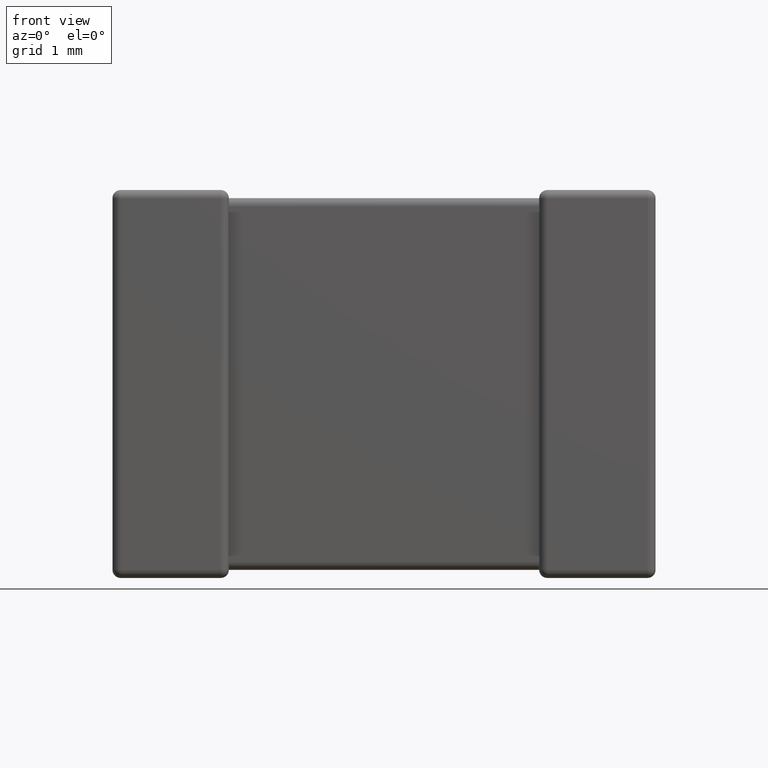
[diagram: clean part render]
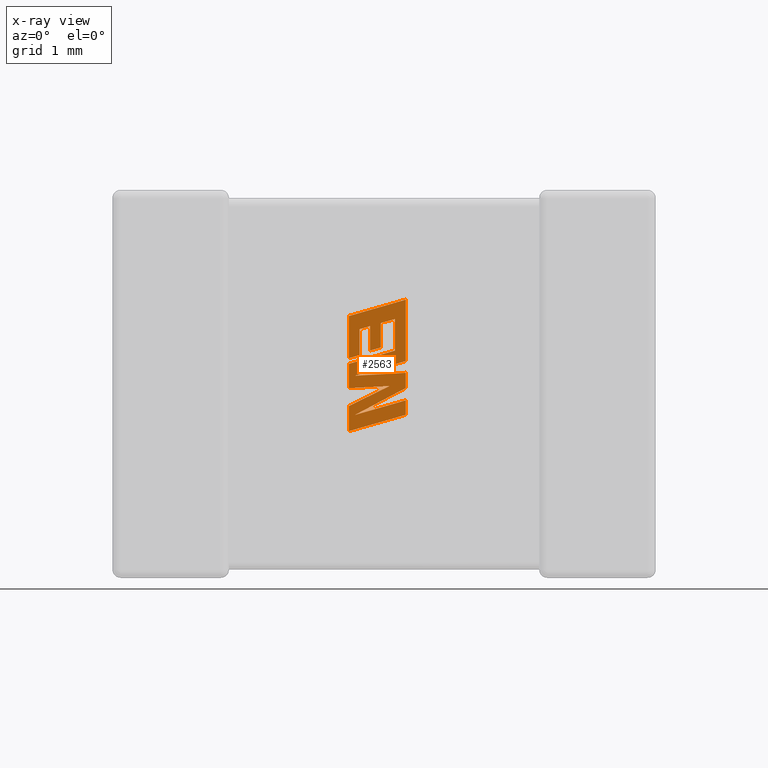
[diagram: x-ray — body ghosted, one internal face saturated and labeled with its STEP entity id]
A machine part, front view, then the same camera in x-ray: the body is ghosted and one INTERNAL B-rep face — a face not visible from any outside direction — is saturated and labeled: STEP entity #2563.
In plain terms, the highlighted planar face has unit normal (0, -1, 0).
Its self-contained STEP definition (entity closure, byte-faithful):
#22 = ORIENTED_EDGE ( 'NONE', *, *, #4190, .F. ) ;
#50 = VECTOR ( 'NONE', #3666, 1000.000000000000000 ) ;
#51 = ORIENTED_EDGE ( 'NONE', *, *, #3562, .F. ) ;
#85 = VERTEX_POINT ( 'NONE', #4511 ) ;
#94 = CARTESIAN_POINT ( 'NONE',  ( 2.646000000000011010, 2.627200000000000202, -1.650160399609248874 ) ) ;
#109 = CARTESIAN_POINT ( 'NONE',  ( 2.131461455074790567, 2.627200000000000202, -1.518180063271352687 ) ) ;
#164 = FACE_OUTER_BOUND ( 'NONE', #1676, .T. ) ;
#171 = CARTESIAN_POINT ( 'NONE',  ( 2.646000000000011010, 2.627200000000000202, -1.898139623118868524 ) ) ;
#192 = LINE ( 'NONE', #1969, #2816 ) ;
#195 = DIRECTION ( 'NONE',  ( -0.9617234872620624708, 0.000000000000000000, -0.2740217765953968931 ) ) ;
#207 = LINE ( 'NONE', #4126, #1148 ) ;
#250 = ORIENTED_EDGE ( 'NONE', *, *, #722, .F. ) ;
#261 = CARTESIAN_POINT ( 'NONE',  ( 2.646000000000011010, 2.627200000000000202, -1.787331774155181074 ) ) ;
#287 = CARTESIAN_POINT ( 'NONE',  ( 2.229401225116403484, 2.627200000000000202, -1.255934090619534649 ) ) ;
#310 = DIRECTION ( 'NONE',  ( 0.9610029908221285888, 0.000000000000000000, 0.2765379750249931656 ) ) ;
#331 = CARTESIAN_POINT ( 'NONE',  ( 2.185713901613333565, 2.627200000000000202, -2.030318652395434409 ) ) ;
#348 = ORIENTED_EDGE ( 'NONE', *, *, #3395, .F. ) ;
#363 = EDGE_CURVE ( 'NONE', #1961, #2316, #1980, .T. ) ;
#388 = CARTESIAN_POINT ( 'NONE',  ( 2.131461455074790567, 2.627200000000000202, -1.788625948747415650 ) ) ;
#411 = CARTESIAN_POINT ( 'NONE',  ( 2.325105313117774131, 2.627200000000000202, -1.228085846872917664 ) ) ;
#423 = DIRECTION ( 'NONE',  ( 0.000000000000000000, 0.000000000000000000, -1.000000000000000000 ) ) ;
#499 = DIRECTION ( 'NONE',  ( 0.000000000000000000, 0.000000000000000000, -1.000000000000000000 ) ) ;
#529 = LINE ( 'NONE', #1301, #3782 ) ;
#532 = CARTESIAN_POINT ( 'NONE',  ( 2.229401225116403484, 2.627200000000000202, -1.490363109686198895 ) ) ;
#592 = ORIENTED_EDGE ( 'NONE', *, *, #1015, .F. ) ;
#599 = CARTESIAN_POINT ( 'NONE',  ( 2.185713901613333565, 2.627200000000000202, -2.030318652395434409 ) ) ;
#602 = EDGE_CURVE ( 'NONE', #2316, #1583, #3575, .T. ) ;
#611 = LINE ( 'NONE', #1244, #2222 ) ;
#637 = DIRECTION ( 'NONE',  ( -0.9615454294334447871, 0.000000000000000000, -0.2746459304917005517 ) ) ;
#722 = EDGE_CURVE ( 'NONE', #1392, #1485, #2058, .T. ) ;
#725 = CARTESIAN_POINT ( 'NONE',  ( 2.420225839607044183, 2.627200000000000202, -1.421762559585259877 ) ) ;
#738 = DIRECTION ( 'NONE',  ( 0.9984327301130250243, 0.000000000000000000, 0.05596501978067342647 ) ) ;
#761 = VERTEX_POINT ( 'NONE', #109 ) ;
#780 = ORIENTED_EDGE ( 'NONE', *, *, #4389, .F. ) ;
#838 = VERTEX_POINT ( 'NONE', #725 ) ;
#873 = EDGE_CURVE ( 'NONE', #4436, #998, #192, .T. ) ;
#913 = ORIENTED_EDGE ( 'NONE', *, *, #363, .F. ) ;
#915 = CARTESIAN_POINT ( 'NONE',  ( 2.548108729707783127, 2.627200000000000202, -1.449742222008734815 ) ) ;
#974 = CARTESIAN_POINT ( 'NONE',  ( 2.131461455074790567, 2.627200000000000202, -1.951152340343301539 ) ) ;
#988 = CARTESIAN_POINT ( 'NONE',  ( 2.646000000000011010, 2.627200000000000202, -1.650160399609248874 ) ) ;
#998 = VERTEX_POINT ( 'NONE', #974 ) ;
#999 = DIRECTION ( 'NONE',  ( -0.8843386665637650301, 0.000000000000000000, -0.4668459304955136502 ) ) ;
#1008 = CARTESIAN_POINT ( 'NONE',  ( 2.131461455074790567, 2.627200000000000202, -1.138056229662791852 ) ) ;
#1015 = EDGE_CURVE ( 'NONE', #2584, #1392, #3795, .T. ) ;
#1078 = VECTOR ( 'NONE', #999, 1000.000000000000114 ) ;
#1133 = EDGE_CURVE ( 'NONE', #3825, #2584, #1853, .T. ) ;
#1148 = VECTOR ( 'NONE', #4149, 1000.000000000000227 ) ;
#1171 = LINE ( 'NONE', #532, #3709 ) ;
#1188 = CARTESIAN_POINT ( 'NONE',  ( 2.131461455074790567, 2.627200000000000202, -1.569502186183909798 ) ) ;
#1214 = VECTOR ( 'NONE', #2720, 1000.000000000000000 ) ;
#1230 = CARTESIAN_POINT ( 'NONE',  ( 2.646000000000011010, 2.627200000000000202, -1.544308912229137354 ) ) ;
#1232 = DIRECTION ( 'NONE',  ( 0.000000000000000000, 0.000000000000000000, 1.000000000000000000 ) ) ;
#1234 = DIRECTION ( 'NONE',  ( 0.000000000000000000, 0.000000000000000000, 1.000000000000000000 ) ) ;
#1244 = CARTESIAN_POINT ( 'NONE',  ( 2.131461455074790567, 2.627200000000000202, -1.788625948747415650 ) ) ;
#1245 = LINE ( 'NONE', #2624, #2229 ) ;
#1276 = DIRECTION ( 'NONE',  ( 0.000000000000000000, 0.000000000000000000, -1.000000000000000000 ) ) ;
#1288 = VERTEX_POINT ( 'NONE', #3983 ) ;
#1300 = EDGE_CURVE ( 'NONE', #2872, #761, #1171, .T. ) ;
#1301 = CARTESIAN_POINT ( 'NONE',  ( 2.548108729707783127, 2.627200000000000202, -1.164510496710604137 ) ) ;
#1334 = CARTESIAN_POINT ( 'NONE',  ( 2.131461455074790567, 2.627200000000000202, -1.518180063271352687 ) ) ;
#1341 = DIRECTION ( 'NONE',  ( 0.000000000000000000, 0.000000000000000000, -1.000000000000000000 ) ) ;
#1392 = VERTEX_POINT ( 'NONE', #599 ) ;
#1412 = LINE ( 'NONE', #3504, #2308 ) ;
#1430 = VERTEX_POINT ( 'NONE', #4176 ) ;
#1463 = DIRECTION ( 'NONE',  ( 0.000000000000000000, 0.000000000000000000, -1.000000000000000000 ) ) ;
#1485 = VERTEX_POINT ( 'NONE', #171 ) ;
#1513 = DIRECTION ( 'NONE',  ( 0.000000000000000000, 0.000000000000000000, -1.000000000000000000 ) ) ;
#1549 = VERTEX_POINT ( 'NONE', #2251 ) ;
#1556 = ORIENTED_EDGE ( 'NONE', *, *, #2810, .F. ) ;
#1557 = VECTOR ( 'NONE', #2518, 1000.000000000000114 ) ;
#1562 = VERTEX_POINT ( 'NONE', #3958 ) ;
#1583 = VERTEX_POINT ( 'NONE', #2039 ) ;
#1587 = PLANE ( 'NONE',  #4048 ) ;
#1609 = LINE ( 'NONE', #3054, #3098 ) ;
#1628 = DIRECTION ( 'NONE',  ( 0.8958676361826827250, 0.000000000000000000, 0.4443210308329466618 ) ) ;
#1637 = CARTESIAN_POINT ( 'NONE',  ( 2.325105313117774131, 2.627200000000000202, -1.228085846872917664 ) ) ;
#1640 = CARTESIAN_POINT ( 'NONE',  ( 2.499054402578550160, 2.627200000000000202, -1.768838267633026984 ) ) ;
#1656 = LINE ( 'NONE', #1334, #1214 ) ;
#1676 = EDGE_LOOP ( 'NONE', ( #1837, #3397, #2661, #250, #592, #4301, #1556, #3696, #3971, #348, #51, #4422, #4150, #2565, #913, #4127, #22, #780, #4278, #2083, #1864, #2107, #2426 ) ) ;
#1686 = CARTESIAN_POINT ( 'NONE',  ( 2.131461455074790567, 2.627200000000000202, -2.176825446628522176 ) ) ;
#1750 = DIRECTION ( 'NONE',  ( 0.9611542233438712390, 0.000000000000000000, 0.2760118818968482213 ) ) ;
#1767 = EDGE_CURVE ( 'NONE', #1485, #1549, #3953, .T. ) ;
#1837 = ORIENTED_EDGE ( 'NONE', *, *, #873, .F. ) ;
#1853 = LINE ( 'NONE', #94, #3783 ) ;
#1857 = EDGE_CURVE ( 'NONE', #998, #4446, #1609, .T. ) ;
#1864 = ORIENTED_EDGE ( 'NONE', *, *, #3061, .F. ) ;
#1927 = DIRECTION ( 'NONE',  ( -0.9619530280415479195, 0.000000000000000000, -0.2732148821746301914 ) ) ;
#1960 = DIRECTION ( 'NONE',  ( -0.9985542843760948362, 0.000000000000000000, -0.05375259206908060416 ) ) ;
#1961 = VERTEX_POINT ( 'NONE', #2560 ) ;
#1969 = CARTESIAN_POINT ( 'NONE',  ( 2.131461455074790567, 2.627200000000000202, -2.176825446628522176 ) ) ;
#1980 = LINE ( 'NONE', #2259, #50 ) ;
#2039 = CARTESIAN_POINT ( 'NONE',  ( 2.229401225116403484, 2.627200000000000202, -1.255934090619534649 ) ) ;
#2047 = CARTESIAN_POINT ( 'NONE',  ( 2.420225839607044183, 2.627200000000000202, -1.421762559585259877 ) ) ;
#2058 = LINE ( 'NONE', #331, #3656 ) ;
#2083 = ORIENTED_EDGE ( 'NONE', *, *, #2425, .F. ) ;
#2107 = ORIENTED_EDGE ( 'NONE', *, *, #3814, .F. ) ;
#2178 = CARTESIAN_POINT ( 'NONE',  ( 2.646000000000011010, 2.627200000000000202, -1.787331774155181074 ) ) ;
#2179 = EDGE_CURVE ( 'NONE', #4049, #1562, #3959, .T. ) ;
#2222 = VECTOR ( 'NONE', #3420, 1000.000000000000000 ) ;
#2229 = VECTOR ( 'NONE', #3257, 1000.000000000000000 ) ;
#2251 = CARTESIAN_POINT ( 'NONE',  ( 2.646000000000011010, 2.627200000000000202, -2.028891821030526010 ) ) ;
#2259 = CARTESIAN_POINT ( 'NONE',  ( 2.325105313117774131, 2.627200000000000202, -1.448931806827066682 ) ) ;
#2265 = VERTEX_POINT ( 'NONE', #1188 ) ;
#2308 = VECTOR ( 'NONE', #1463, 1000.000000000000000 ) ;
#2316 = VERTEX_POINT ( 'NONE', #1637 ) ;
#2366 = LINE ( 'NONE', #1008, #3623 ) ;
#2369 = LINE ( 'NONE', #2047, #3483 ) ;
#2404 = EDGE_CURVE ( 'NONE', #3000, #3455, #2407, .T. ) ;
#2407 = LINE ( 'NONE', #4400, #4341 ) ;
#2424 = CARTESIAN_POINT ( 'NONE',  ( 2.131461455074790567, 2.627200000000000202, -1.569502186183909798 ) ) ;
#2425 = EDGE_CURVE ( 'NONE', #2265, #4049, #3519, .T. ) ;
#2426 = ORIENTED_EDGE ( 'NONE', *, *, #1857, .F. ) ;
#2518 = DIRECTION ( 'NONE',  ( 0.9610853065513847993, 0.000000000000000000, 0.2762517575166369421 ) ) ;
#2560 = CARTESIAN_POINT ( 'NONE',  ( 2.325105313117774131, 2.627200000000000202, -1.448931806827066682 ) ) ;
#2563 = ADVANCED_FACE ( 'NONE', ( #164 ), #1587, .T. ) ;
#2565 = ORIENTED_EDGE ( 'NONE', *, *, #602, .F. ) ;
#2584 = VERTEX_POINT ( 'NONE', #2178 ) ;
#2587 = CARTESIAN_POINT ( 'NONE',  ( -0.8070152987309977544, 2.627200000000000202, 0.007919489514314502487 ) ) ;
#2622 = CARTESIAN_POINT ( 'NONE',  ( 2.646000000000011010, 2.627200000000000202, -0.9899927494813206552 ) ) ;
#2624 = CARTESIAN_POINT ( 'NONE',  ( 2.646000000000011010, 2.627200000000000202, -1.544308912229137354 ) ) ;
#2642 = LINE ( 'NONE', #4118, #2737 ) ;
#2646 = VECTOR ( 'NONE', #423, 1000.000000000000000 ) ;
#2656 = VECTOR ( 'NONE', #1341, 1000.000000000000000 ) ;
#2661 = ORIENTED_EDGE ( 'NONE', *, *, #1767, .F. ) ;
#2720 = DIRECTION ( 'NONE',  ( 0.000000000000000000, 0.000000000000000000, 1.000000000000000000 ) ) ;
#2737 = VECTOR ( 'NONE', #1960, 1000.000000000000114 ) ;
#2810 = EDGE_CURVE ( 'NONE', #1288, #3825, #3512, .T. ) ;
#2816 = VECTOR ( 'NONE', #1232, 1000.000000000000000 ) ;
#2872 = VERTEX_POINT ( 'NONE', #3256 ) ;
#2895 = DIRECTION ( 'NONE',  ( 0.000000000000000000, -1.000000000000000000, 0.000000000000000000 ) ) ;
#3000 = VERTEX_POINT ( 'NONE', #2622 ) ;
#3054 = CARTESIAN_POINT ( 'NONE',  ( 2.131461455074790567, 2.627200000000000202, -1.951152340343301539 ) ) ;
#3061 = EDGE_CURVE ( 'NONE', #3237, #2265, #611, .T. ) ;
#3098 = VECTOR ( 'NONE', #1628, 1000.000000000000114 ) ;
#3237 = VERTEX_POINT ( 'NONE', #388 ) ;
#3256 = CARTESIAN_POINT ( 'NONE',  ( 2.229401225116403484, 2.627200000000000202, -1.490363109686198895 ) ) ;
#3257 = DIRECTION ( 'NONE',  ( -0.9611638845408968512, 0.000000000000000000, -0.2759782365590690567 ) ) ;
#3372 = EDGE_CURVE ( 'NONE', #1583, #2872, #3868, .T. ) ;
#3395 = EDGE_CURVE ( 'NONE', #1430, #3000, #2366, .T. ) ;
#3397 = ORIENTED_EDGE ( 'NONE', *, *, #3569, .F. ) ;
#3420 = DIRECTION ( 'NONE',  ( 0.000000000000000000, 0.000000000000000000, 1.000000000000000000 ) ) ;
#3435 = VECTOR ( 'NONE', #4344, 1000.000000000000227 ) ;
#3455 = VERTEX_POINT ( 'NONE', #1230 ) ;
#3483 = VECTOR ( 'NONE', #637, 1000.000000000000114 ) ;
#3504 = CARTESIAN_POINT ( 'NONE',  ( 2.420225839607044183, 2.627200000000000202, -1.200947889792602474 ) ) ;
#3512 = LINE ( 'NONE', #4536, #3546 ) ;
#3519 = LINE ( 'NONE', #2424, #1557 ) ;
#3538 = VECTOR ( 'NONE', #1234, 1000.000000000000000 ) ;
#3546 = VECTOR ( 'NONE', #738, 1000.000000000000227 ) ;
#3562 = EDGE_CURVE ( 'NONE', #761, #1430, #1656, .T. ) ;
#3569 = EDGE_CURVE ( 'NONE', #1549, #4436, #207, .T. ) ;
#3575 = LINE ( 'NONE', #411, #3435 ) ;
#3584 = CARTESIAN_POINT ( 'NONE',  ( 2.646000000000011010, 2.627200000000000202, -1.898139623118868524 ) ) ;
#3623 = VECTOR ( 'NONE', #310, 1000.000000000000114 ) ;
#3656 = VECTOR ( 'NONE', #1750, 1000.000000000000114 ) ;
#3666 = DIRECTION ( 'NONE',  ( 0.000000000000000000, 0.000000000000000000, 1.000000000000000000 ) ) ;
#3696 = ORIENTED_EDGE ( 'NONE', *, *, #3753, .F. ) ;
#3709 = VECTOR ( 'NONE', #1927, 999.9999999999998863 ) ;
#3753 = EDGE_CURVE ( 'NONE', #3455, #1288, #1245, .T. ) ;
#3782 = VECTOR ( 'NONE', #195, 1000.000000000000000 ) ;
#3783 = VECTOR ( 'NONE', #1513, 1000.000000000000000 ) ;
#3795 = LINE ( 'NONE', #261, #1078 ) ;
#3814 = EDGE_CURVE ( 'NONE', #4446, #3237, #2642, .T. ) ;
#3825 = VERTEX_POINT ( 'NONE', #988 ) ;
#3868 = LINE ( 'NONE', #287, #2656 ) ;
#3953 = LINE ( 'NONE', #3584, #2646 ) ;
#3958 = CARTESIAN_POINT ( 'NONE',  ( 2.548108729707783127, 2.627200000000000202, -1.164510496710604137 ) ) ;
#3959 = LINE ( 'NONE', #4361, #3538 ) ;
#3971 = ORIENTED_EDGE ( 'NONE', *, *, #2404, .F. ) ;
#3983 = CARTESIAN_POINT ( 'NONE',  ( 2.187919857998916751, 2.627200000000000202, -1.675837106146426336 ) ) ;
#3990 = EDGE_CURVE ( 'NONE', #838, #1961, #2369, .T. ) ;
#4048 = AXIS2_PLACEMENT_3D ( 'NONE', #2587, #2895, #499 ) ;
#4049 = VERTEX_POINT ( 'NONE', #915 ) ;
#4118 = CARTESIAN_POINT ( 'NONE',  ( 2.499054402578550160, 2.627200000000000202, -1.768838267633026984 ) ) ;
#4126 = CARTESIAN_POINT ( 'NONE',  ( 2.646000000000011010, 2.627200000000000202, -2.028891821030526010 ) ) ;
#4127 = ORIENTED_EDGE ( 'NONE', *, *, #3990, .F. ) ;
#4149 = DIRECTION ( 'NONE',  ( -0.9610674221107078363, 0.000000000000000000, -0.2763139702539094134 ) ) ;
#4150 = ORIENTED_EDGE ( 'NONE', *, *, #3372, .F. ) ;
#4176 = CARTESIAN_POINT ( 'NONE',  ( 2.131461455074790567, 2.627200000000000202, -1.138056229662791852 ) ) ;
#4190 = EDGE_CURVE ( 'NONE', #85, #838, #1412, .T. ) ;
#4278 = ORIENTED_EDGE ( 'NONE', *, *, #2179, .F. ) ;
#4301 = ORIENTED_EDGE ( 'NONE', *, *, #1133, .F. ) ;
#4341 = VECTOR ( 'NONE', #1276, 1000.000000000000000 ) ;
#4344 = DIRECTION ( 'NONE',  ( -0.9601763114327565019, 0.000000000000000000, -0.2793947940878393488 ) ) ;
#4361 = CARTESIAN_POINT ( 'NONE',  ( 2.548108729707783127, 2.627200000000000202, -1.449742222008734815 ) ) ;
#4389 = EDGE_CURVE ( 'NONE', #1562, #85, #529, .T. ) ;
#4400 = CARTESIAN_POINT ( 'NONE',  ( 2.646000000000011010, 2.627200000000000202, -1.452722609482480554 ) ) ;
#4422 = ORIENTED_EDGE ( 'NONE', *, *, #1300, .F. ) ;
#4436 = VERTEX_POINT ( 'NONE', #1686 ) ;
#4446 = VERTEX_POINT ( 'NONE', #1640 ) ;
#4511 = CARTESIAN_POINT ( 'NONE',  ( 2.420225839607044183, 2.627200000000000202, -1.200947889792602474 ) ) ;
#4536 = CARTESIAN_POINT ( 'NONE',  ( 2.187919857998916751, 2.627200000000000202, -1.675837106146426336 ) ) ;